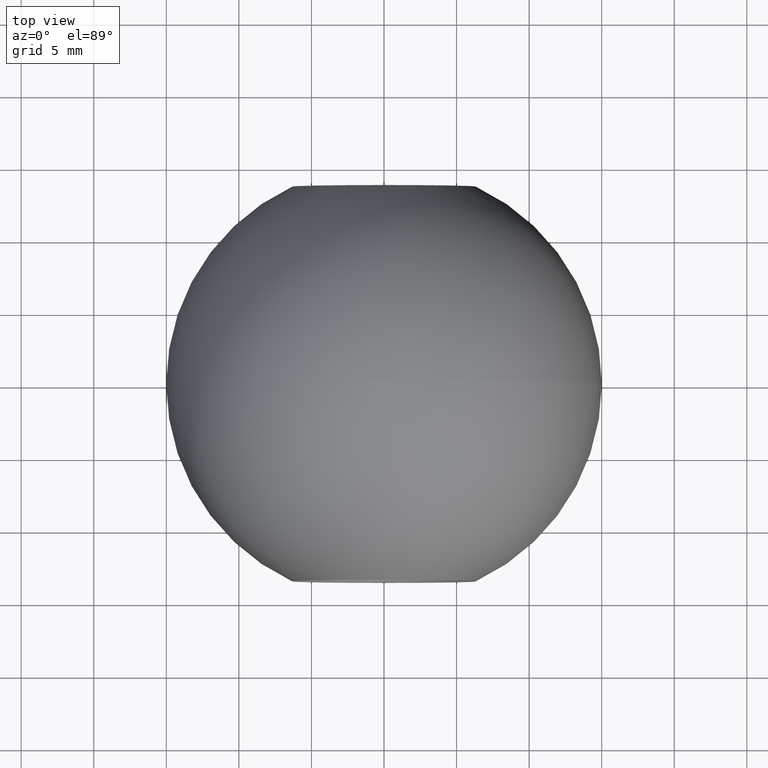
[diagram: clean part render]
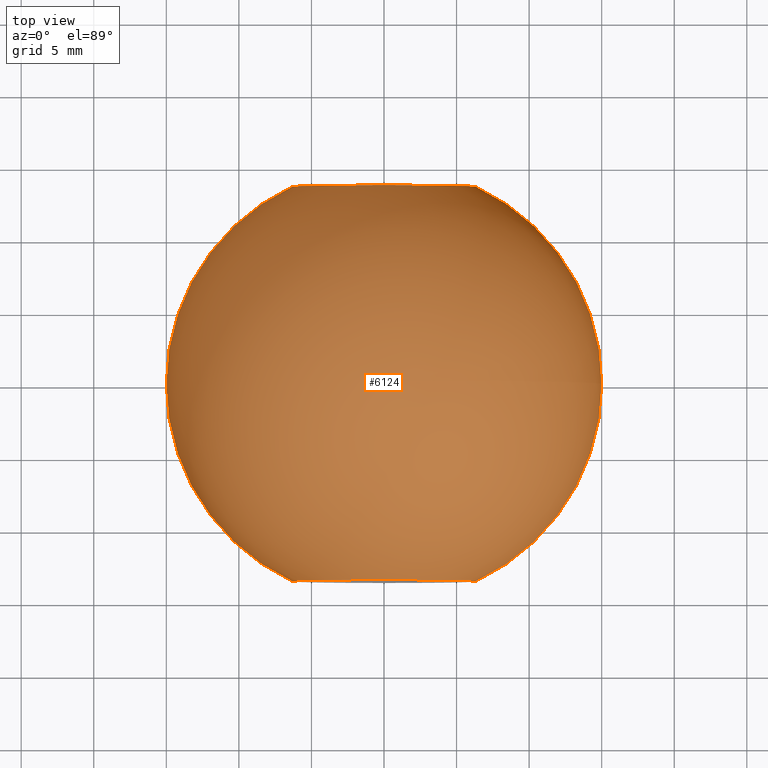
[diagram: same view with one face highlighted and labeled with its STEP entity id]
A machine part, top view. The second image highlights one B-rep face of the part: STEP entity #6124.
In plain terms, the highlighted spherical surface has radius 15 mm.
Its self-contained STEP definition (entity closure, byte-faithful):
#170 = CIRCLE ( 'NONE', #9996, 6.326332929231102600 ) ;
#188 = EDGE_CURVE ( 'NONE', #11695, #10987, #1803, .T. ) ;
#611 = CIRCLE ( 'NONE', #2415, 6.326332929231085700 ) ;
#672 = ORIENTED_EDGE ( 'NONE', *, *, #11989, .F. ) ;
#851 = EDGE_CURVE ( 'NONE', #3215, #11016, #611, .T. ) ;
#862 = EDGE_CURVE ( 'NONE', #8283, #3080, #2417, .T. ) ;
#1062 = EDGE_LOOP ( 'NONE', ( #672, #2636, #4783, #3425, #9744, #10754 ) ) ;
#1218 = CARTESIAN_POINT ( 'NONE',  ( 0.0000000000000000000, 0.0000000000000000000, 0.0000000000000000000 ) ) ;
#1330 = CARTESIAN_POINT ( 'NONE',  ( 0.0000000000000000000, 0.0000000000000000000, 0.0000000000000000000 ) ) ;
#1371 = DIRECTION ( 'NONE',  ( -1.000000000000000000, 0.0000000000000000000, -1.224646799147353000E-016 ) ) ;
#1717 = DIRECTION ( 'NONE',  ( 0.0000000000000000000, 1.000000000000000000, 0.0000000000000000000 ) ) ;
#1738 = DIRECTION ( 'NONE',  ( -0.0000000000000000000, -1.000000000000000000, -0.0000000000000000000 ) ) ;
#1803 = CIRCLE ( 'NONE', #2482, 15.00000000000000000 ) ;
#1899 = EDGE_CURVE ( 'NONE', #10987, #8283, #170, .T. ) ;
#2247 = AXIS2_PLACEMENT_3D ( 'NONE', #3780, #1738, #12079 ) ;
#2415 = AXIS2_PLACEMENT_3D ( 'NONE', #5411, #11966, #2469 ) ;
#2417 = CIRCLE ( 'NONE', #2247, 6.326332929231102600 ) ;
#2469 = DIRECTION ( 'NONE',  ( 0.0000000000000000000, 0.0000000000000000000, 1.000000000000000000 ) ) ;
#2482 = AXIS2_PLACEMENT_3D ( 'NONE', #1218, #4071, #4984 ) ;
#2636 = ORIENTED_EDGE ( 'NONE', *, *, #851, .T. ) ;
#2790 = EDGE_CURVE ( 'NONE', #11016, #11695, #4469, .T. ) ;
#2875 = DIRECTION ( 'NONE',  ( 0.0000000000000000000, 0.0000000000000000000, -1.000000000000000000 ) ) ;
#3080 = VERTEX_POINT ( 'NONE', #10716 ) ;
#3215 = VERTEX_POINT ( 'NONE', #4504 ) ;
#3425 = ORIENTED_EDGE ( 'NONE', *, *, #188, .T. ) ;
#3562 = DIRECTION ( 'NONE',  ( 0.0000000000000000000, 0.0000000000000000000, 1.000000000000000000 ) ) ;
#3780 = CARTESIAN_POINT ( 'NONE',  ( 0.0000000000000000000, 13.60064379610488300, 0.0000000000000000000 ) ) ;
#4071 = DIRECTION ( 'NONE',  ( 0.0000000000000000000, 0.0000000000000000000, 1.000000000000000000 ) ) ;
#4469 = CIRCLE ( 'NONE', #11028, 6.326332929231085700 ) ;
#4470 = SPHERICAL_SURFACE ( 'NONE', #8324, 15.00000000000000000 ) ;
#4504 = CARTESIAN_POINT ( 'NONE',  ( -6.326332929231085700, -13.60064379610489000, -7.747523372123356500E-016 ) ) ;
#4710 = DIRECTION ( 'NONE',  ( 0.0000000000000000000, 0.0000000000000000000, -1.000000000000000000 ) ) ;
#4783 = ORIENTED_EDGE ( 'NONE', *, *, #2790, .T. ) ;
#4786 = CARTESIAN_POINT ( 'NONE',  ( 2.611722535933364500E-015, -13.60064379610489000, 6.326332929231087500 ) ) ;
#4984 = DIRECTION ( 'NONE',  ( 1.000000000000000000, 0.0000000000000000000, 0.0000000000000000000 ) ) ;
#5388 = CARTESIAN_POINT ( 'NONE',  ( 0.0000000000000000000, -13.60064379610489000, 0.0000000000000000000 ) ) ;
#5411 = CARTESIAN_POINT ( 'NONE',  ( 0.0000000000000000000, -13.60064379610489000, 0.0000000000000000000 ) ) ;
#6119 = CARTESIAN_POINT ( 'NONE',  ( 1.836970198721029600E-015, 13.60064379610488300, 6.326332929231102600 ) ) ;
#6124 = ADVANCED_FACE ( 'NONE', ( #11938 ), #4470, .T. ) ;
#7421 = CARTESIAN_POINT ( 'NONE',  ( 0.0000000000000000000, 13.60064379610488300, 0.0000000000000000000 ) ) ;
#7622 = CIRCLE ( 'NONE', #11211, 15.00000000000000000 ) ;
#7805 = DIRECTION ( 'NONE',  ( 1.224646799147353200E-016, 0.0000000000000000000, -1.000000000000000000 ) ) ;
#8283 = VERTEX_POINT ( 'NONE', #6119 ) ;
#8324 = AXIS2_PLACEMENT_3D ( 'NONE', #10474, #2875, #9454 ) ;
#9454 = DIRECTION ( 'NONE',  ( 1.000000000000000000, 0.0000000000000000000, 0.0000000000000000000 ) ) ;
#9744 = ORIENTED_EDGE ( 'NONE', *, *, #1899, .T. ) ;
#9996 = AXIS2_PLACEMENT_3D ( 'NONE', #7421, #10292, #4710 ) ;
#10292 = DIRECTION ( 'NONE',  ( -0.0000000000000000000, -1.000000000000000000, -0.0000000000000000000 ) ) ;
#10474 = CARTESIAN_POINT ( 'NONE',  ( 0.0000000000000000000, 0.0000000000000000000, 0.0000000000000000000 ) ) ;
#10716 = CARTESIAN_POINT ( 'NONE',  ( -6.326332929231102600, 13.60064379610488300, -7.747523372123367300E-016 ) ) ;
#10754 = ORIENTED_EDGE ( 'NONE', *, *, #862, .T. ) ;
#10987 = VERTEX_POINT ( 'NONE', #11418 ) ;
#11016 = VERTEX_POINT ( 'NONE', #4786 ) ;
#11028 = AXIS2_PLACEMENT_3D ( 'NONE', #5388, #1717, #3562 ) ;
#11211 = AXIS2_PLACEMENT_3D ( 'NONE', #1330, #7805, #1371 ) ;
#11418 = CARTESIAN_POINT ( 'NONE',  ( 6.326332929231102600, 13.60064379610488300, 0.0000000000000000000 ) ) ;
#11453 = CARTESIAN_POINT ( 'NONE',  ( 6.326332929231085700, -13.60064379610489000, 0.0000000000000000000 ) ) ;
#11695 = VERTEX_POINT ( 'NONE', #11453 ) ;
#11938 = FACE_OUTER_BOUND ( 'NONE', #1062, .T. ) ;
#11966 = DIRECTION ( 'NONE',  ( 0.0000000000000000000, 1.000000000000000000, 0.0000000000000000000 ) ) ;
#11989 = EDGE_CURVE ( 'NONE', #3215, #3080, #7622, .T. ) ;
#12079 = DIRECTION ( 'NONE',  ( 0.0000000000000000000, 0.0000000000000000000, -1.000000000000000000 ) ) ;